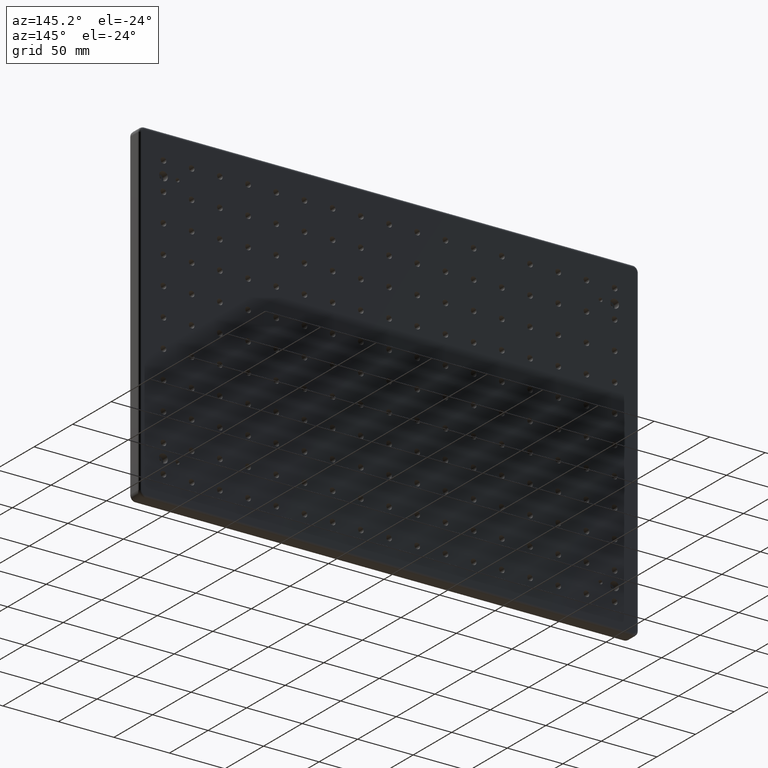
[diagram: clean part render]
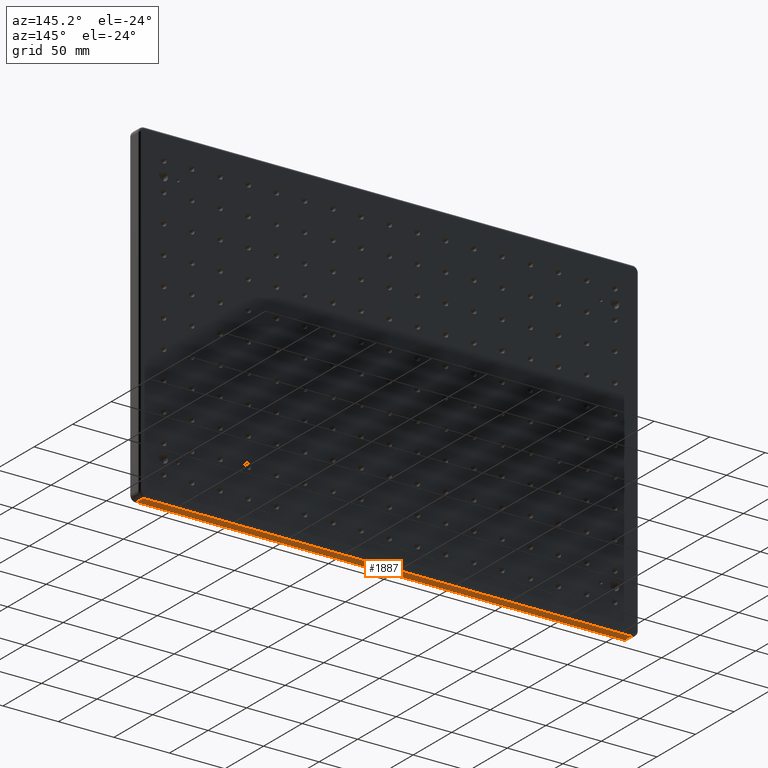
[diagram: same view with one face highlighted and labeled with its STEP entity id]
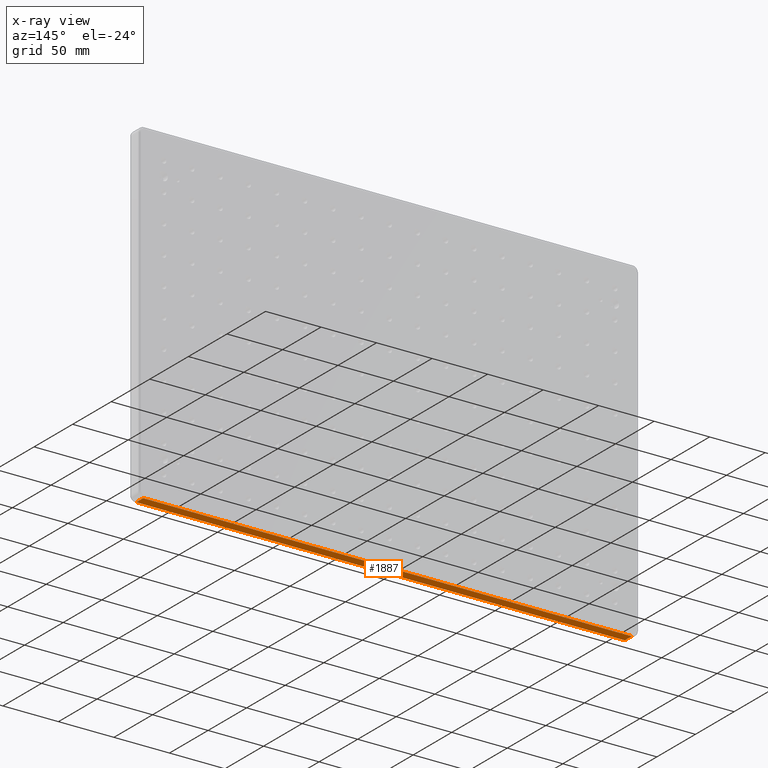
[diagram: x-ray of the same camera — body ghosted, the highlighted face saturated]
A machine part, auxiliary view. The second image highlights one B-rep face of the part: STEP entity #1887.
The next image is the same camera in x-ray: the body ghosted, the highlighted face saturated — about 0% of this face is hidden behind the body in this view.
In plain terms, the highlighted planar face has unit normal (0, 0, 1).
Its self-contained STEP definition (entity closure, byte-faithful):
#151 = ORIENTED_EDGE ( 'NONE', *, *, #5491, .T. ) ;
#369 = EDGE_LOOP ( 'NONE', ( #5607, #8192, #151, #11307 ) ) ;
#427 = CARTESIAN_POINT ( 'NONE',  ( -220.0000000000000000, 4.500000000000000000, -150.0000000000000000 ) ) ;
#514 = EDGE_CURVE ( 'NONE', #7366, #3361, #1964, .T. ) ;
#529 = DIRECTION ( 'NONE',  ( 1.000000000000000000, -0.0000000000000000000, -0.0000000000000000000 ) ) ;
#1608 = CARTESIAN_POINT ( 'NONE',  ( -220.0000000000000000, 6.500000000000000000, -150.0000000000000000 ) ) ;
#1850 = VECTOR ( 'NONE', #15006, 1000.000000000000000 ) ;
#1887 = ADVANCED_FACE ( 'NONE', ( #8845 ), #8315, .F. ) ;
#1964 = LINE ( 'NONE', #13853, #11685 ) ;
#2602 = DIRECTION ( 'NONE',  ( -1.000000000000000000, 0.0000000000000000000, 0.0000000000000000000 ) ) ;
#2647 = VECTOR ( 'NONE', #2602, 1000.000000000000000 ) ;
#3361 = VERTEX_POINT ( 'NONE', #11942 ) ;
#3795 = EDGE_CURVE ( 'NONE', #11359, #4993, #4694, .T. ) ;
#4694 = LINE ( 'NONE', #9746, #2647 ) ;
#4993 = VERTEX_POINT ( 'NONE', #5757 ) ;
#5144 = DIRECTION ( 'NONE',  ( 0.0000000000000000000, -1.000000000000000000, 0.0000000000000000000 ) ) ;
#5491 = EDGE_CURVE ( 'NONE', #4993, #7366, #13448, .T. ) ;
#5607 = ORIENTED_EDGE ( 'NONE', *, *, #14989, .T. ) ;
#5757 = CARTESIAN_POINT ( 'NONE',  ( -220.0000000000000000, -4.500000000000000000, -150.0000000000000000 ) ) ;
#7219 = DIRECTION ( 'NONE',  ( 0.0000000000000000000, 0.0000000000000000000, 1.000000000000000000 ) ) ;
#7366 = VERTEX_POINT ( 'NONE', #427 ) ;
#8192 = ORIENTED_EDGE ( 'NONE', *, *, #3795, .T. ) ;
#8315 = PLANE ( 'NONE',  #13951 ) ;
#8323 = LINE ( 'NONE', #14939, #9074 ) ;
#8845 = FACE_OUTER_BOUND ( 'NONE', #369, .T. ) ;
#9074 = VECTOR ( 'NONE', #5144, 1000.000000000000000 ) ;
#9746 = CARTESIAN_POINT ( 'NONE',  ( -220.0000000000000000, -4.500000000000000000, -150.0000000000000000 ) ) ;
#10767 = CARTESIAN_POINT ( 'NONE',  ( -225.0000000000000000, 6.500000000000000000, -150.0000000000000000 ) ) ;
#10818 = DIRECTION ( 'NONE',  ( 1.000000000000000000, 0.0000000000000000000, -0.0000000000000000000 ) ) ;
#11307 = ORIENTED_EDGE ( 'NONE', *, *, #514, .T. ) ;
#11359 = VERTEX_POINT ( 'NONE', #12670 ) ;
#11685 = VECTOR ( 'NONE', #529, 1000.000000000000000 ) ;
#11942 = CARTESIAN_POINT ( 'NONE',  ( 220.0000000000000000, 4.500000000000000000, -150.0000000000000000 ) ) ;
#12670 = CARTESIAN_POINT ( 'NONE',  ( 220.0000000000000000, -4.500000000000000000, -150.0000000000000000 ) ) ;
#13448 = LINE ( 'NONE', #1608, #1850 ) ;
#13853 = CARTESIAN_POINT ( 'NONE',  ( -225.0000000000000000, 4.500000000000000000, -150.0000000000000000 ) ) ;
#13951 = AXIS2_PLACEMENT_3D ( 'NONE', #10767, #7219, #10818 ) ;
#14939 = CARTESIAN_POINT ( 'NONE',  ( 220.0000000000000000, 6.500000000000000000, -150.0000000000000000 ) ) ;
#14989 = EDGE_CURVE ( 'NONE', #3361, #11359, #8323, .T. ) ;
#15006 = DIRECTION ( 'NONE',  ( -0.0000000000000000000, 1.000000000000000000, -0.0000000000000000000 ) ) ;